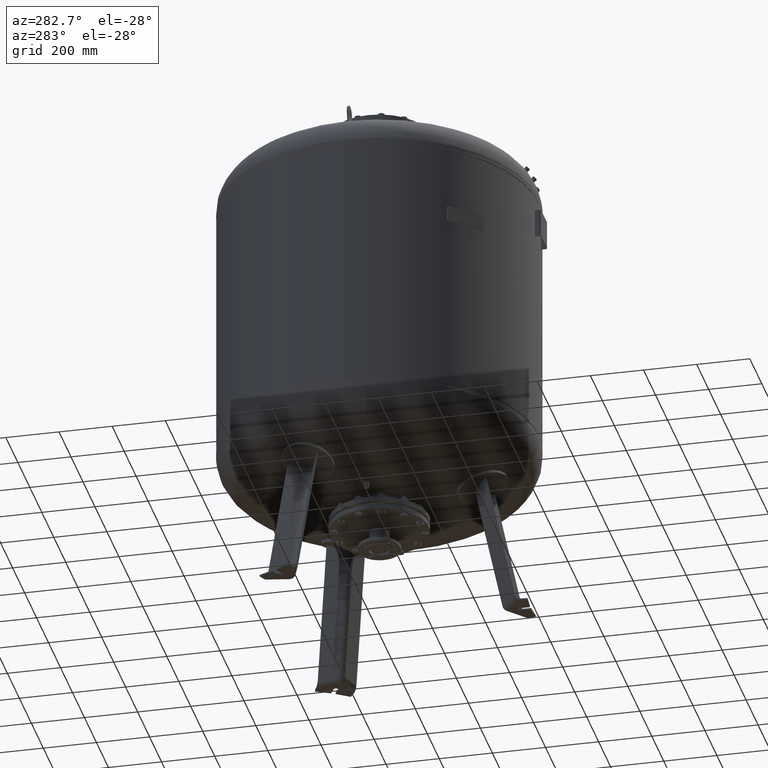
[diagram: clean part render]
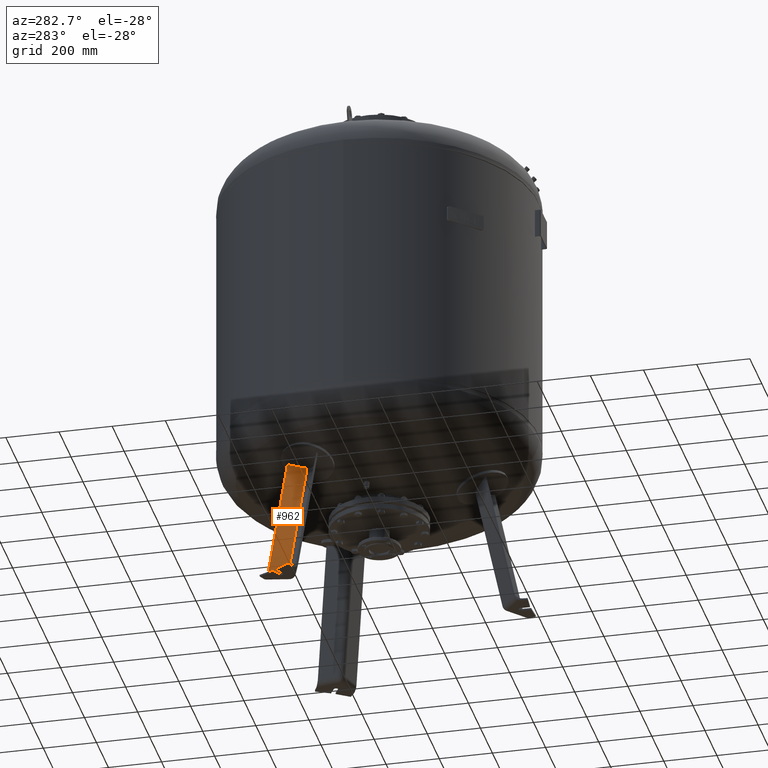
[diagram: same view with one face highlighted and labeled with its STEP entity id]
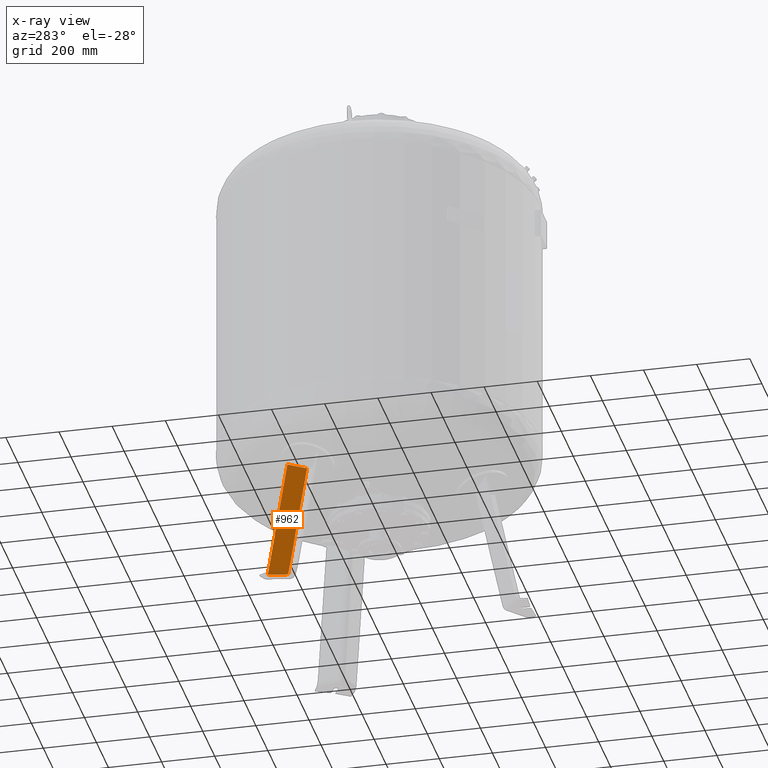
[diagram: x-ray of the same camera — body ghosted, the highlighted face saturated]
A machine part, auxiliary view. The second image highlights one B-rep face of the part: STEP entity #962.
The next image is the same camera in x-ray: the body ghosted, the highlighted face saturated — about 0% of this face is hidden behind the body in this view.
In plain terms, the highlighted planar face has unit normal (-0.9697, -0.1854, 0.1588).
Its self-contained STEP definition (entity closure, byte-faithful):
#213=CARTESIAN_POINT('',(-404.267871061775740,252.036932639186200,27.029948423057292));
#214=VERTEX_POINT('',#213);
#546=CARTESIAN_POINT('',(-418.341095342265250,325.635267289667410,27.029948423057292));
#547=VERTEX_POINT('',#546);
#548=CARTESIAN_POINT('',(-404.267871061775740,252.036932639186200,27.029948423057292));
#549=DIRECTION('',(-0.187813845079450,0.982204642422582,0.0));
#550=VECTOR('',#549,74.931772333057637);
#551=LINE('',#548,#550);
#552=EDGE_CURVE('',#214,#547,#551,.T.);
#833=CARTESIAN_POINT('',(-326.337683684044410,272.517072802429600,526.832862714638170));
#834=VERTEX_POINT('',#833);
#842=CARTESIAN_POINT('',(-315.671290026426850,200.885672729146960,508.325463444113210));
#843=VERTEX_POINT('',#842);
#844=CARTESIAN_POINT('',(-122.338869528974440,18.628324987996592,1476.110567297756700));
#845=DIRECTION('',(0.969740897595359,0.185430570007244,-0.158802063077709));
#846=DIRECTION('',(0.180056805991956,-0.103955845408880,0.978147600733806));
#847=AXIS2_PLACEMENT_3D('',#844,#845,#846);
#848=CIRCLE('',#847,1003.595123972834800);
#849=EDGE_CURVE('',#843,#834,#848,.T.);
#941=CARTESIAN_POINT('',(-409.201208147898230,236.252427676909380,-21.527282742766886));
#942=DIRECTION('',(-0.969740897595359,-0.185430570007244,0.158802063077708));
#943=DIRECTION('',(0.180056805991956,-0.103955845408880,0.978147600733806));
#944=AXIS2_PLACEMENT_3D('',#941,#942,#943);
#945=PLANE('',#944);
#946=ORIENTED_EDGE('',*,*,#849,.T.);
#947=CARTESIAN_POINT('',(-418.341095342265250,325.635267289667410,27.029948423057292));
#948=DIRECTION('',(0.180056805991956,-0.103955845408880,0.978147600733806));
#949=VECTOR('',#948,510.968808712130060);
#950=LINE('',#947,#949);
#951=EDGE_CURVE('',#547,#834,#950,.T.);
#952=ORIENTED_EDGE('',*,*,#951,.F.);
#953=ORIENTED_EDGE('',*,*,#552,.F.);
#954=CARTESIAN_POINT('',(-315.671290026426850,200.885672729146960,508.325463444113210));
#955=DIRECTION('',(-0.180056805991956,0.103955845408880,-0.978147600733806));
#956=VECTOR('',#955,492.047943132496980);
#957=LINE('',#954,#956);
#958=EDGE_CURVE('',#843,#214,#957,.T.);
#959=ORIENTED_EDGE('',*,*,#958,.F.);
#960=EDGE_LOOP('',(#946,#952,#953,#959));
#961=FACE_OUTER_BOUND('',#960,.T.);
#962=ADVANCED_FACE('',(#961),#945,.T.);